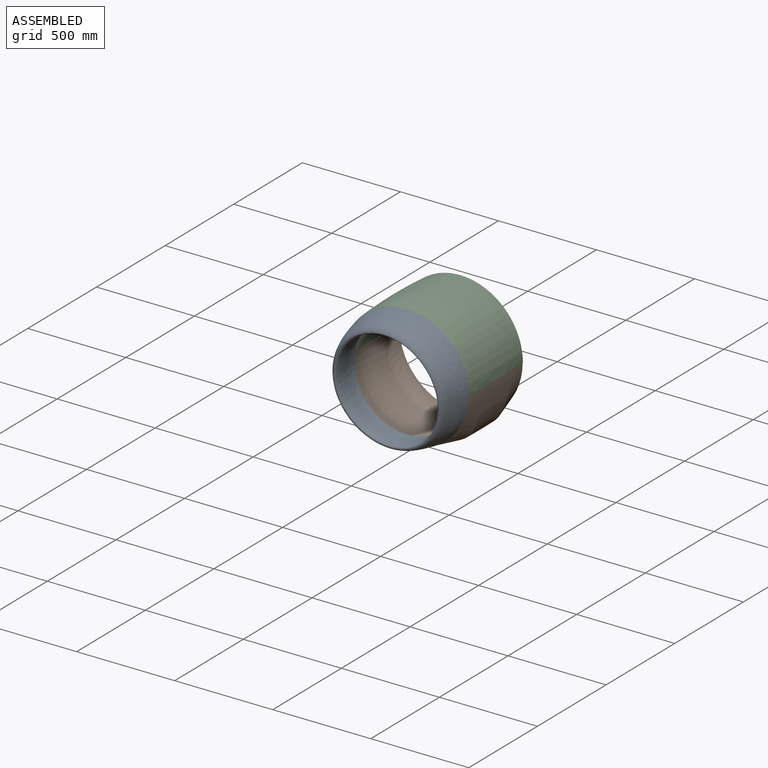
[diagram: assembled view]
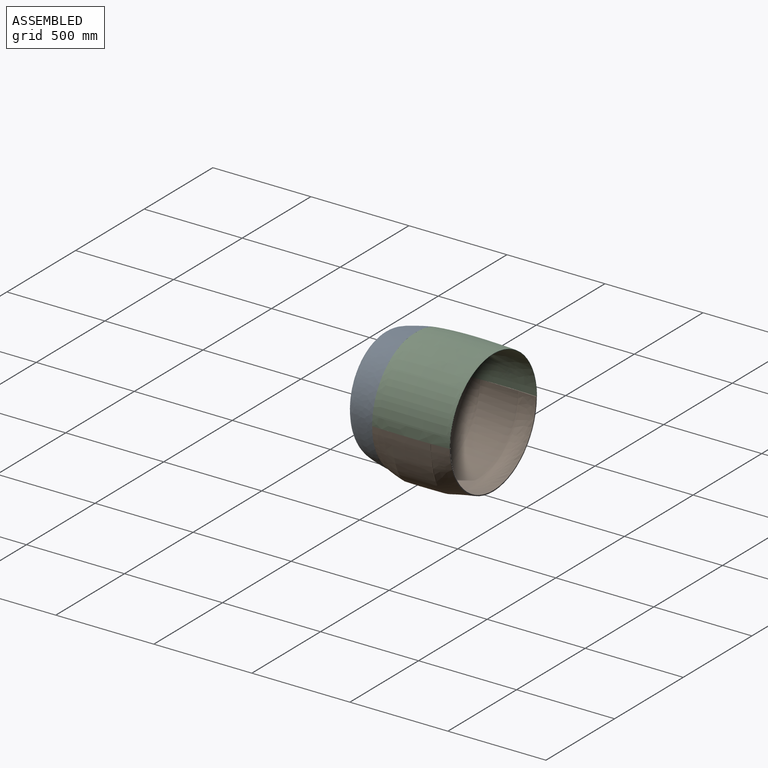
[diagram: assembled view, second angle]
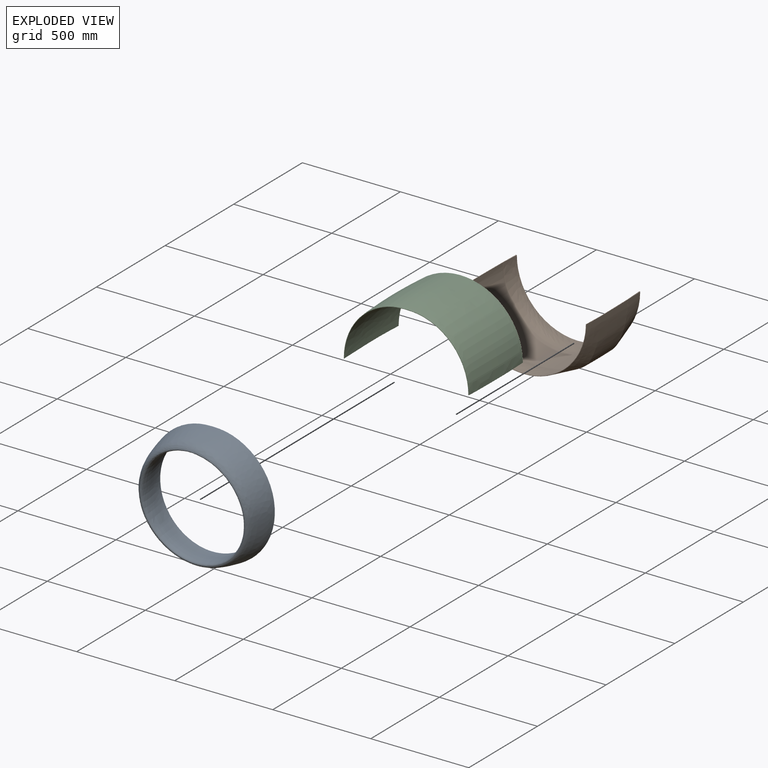
[diagram: exploded view]
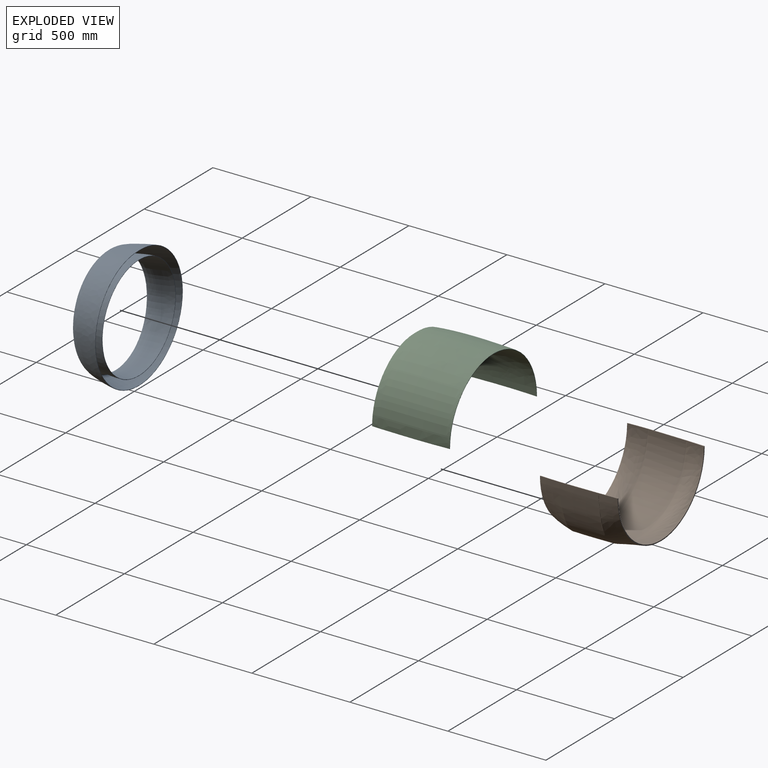
[diagram: exploded view, second angle]
ASSEMBLY  parts=3 mates=2
PART A: 4 faces, bbox 638.3x169.8x626 mm
  f0: bspline ~637.91x623.99mm, area 529496.8mm2, adj f1,f2
  f1: plane 536.49x536.02mm, normal (0,1,0), area 3610.4mm2, adj f0,f3
  f2: plane 637.54x625.02mm, normal (0,1,0), area 4223.5mm2, adj f0,f3
  f3: bspline ~638.34x626mm, area 540610.2mm2, adj f1,f2
PART B: 22 faces, bbox 647.8x396.6x341.9 mm
  f0: plane 639.01x315.53mm, normal (0,-1,0), area 2027.8mm2, adj f1,f19,f20,f21
  f1: plane 395x10.97mm, normal (0,0,1), area 1178.3mm2, adj f0,f2,f7,f13,f14,f15,f16,f17
  f2: bspline ~219.5x65.38mm, area 5119.8mm2, adj f1,f3,f7,f21
  f3: bspline ~61.76x59.13mm, area 779.2mm2, adj f2,f4,f7
  f4: bspline ~65.56x64.75mm, area 1977.9mm2, adj f3,f5,f7,f21
  f5: bspline ~51.82x40.65mm, area 522.4mm2, adj f4,f6,f21
  f6: bspline ~525.33x317.75mm, area 18016mm2, adj f5,f7,f20,f21
  f7: bspline ~640x317.02mm, area 170855.4mm2, adj f1,f2,f3,f4,f6,f8,f9,f12
  f8: bspline ~60.55x58.37mm, area 1038mm2, adj f7,f9,f13
  f9: bspline ~68.52x68.16mm, area 2476.3mm2, adj f7,f8,f10,f11,f14
  f10: bspline ~33.59x27.22mm, area 208mm2, adj f9,f13
  f11: bspline ~54.85x40.44mm, area 501.3mm2, adj f9,f12,f14
  f12: bspline ~519.15x316.91mm, area 17287.3mm2, adj f7,f11,f14,f20
  f13: bspline ~219.95x65.65mm, area 5999.1mm2, adj f1,f7,f8,f10,f14
  f14: bspline ~635x316.51mm, area 82226.2mm2, adj f1,f9,f11,f12,f13,f15,f20
  f15: plane 635.59x318.59mm, normal (0,1,0), area 4943.8mm2, adj f1,f14,f16,f20
  f16: bspline ~640x319.01mm, area 96788.9mm2, adj f1,f15,f17,f18,f20
  f17: bspline ~338.4x320mm, area 3125mm2, adj f1,f16,f18
  f18: bspline ~644.75x320.89mm, area 202806.5mm2, adj f1,f16,f17,f19,f20
  f19: bspline ~644x319.02mm, area 105192.2mm2, adj f0,f1,f18,f20
  f20: plane 395x11.21mm, normal (0,0,1), area 1151.1mm2, adj f0,f6,f7,f12,f14,f15,f16,f18
  f21: bspline ~640x317.02mm, area 90817.8mm2, adj f0,f1,f2,f4,f5,f6,f20
PART C: 6 faces, bbox 695x444.2x374.1 mm
  f0: plane 637.72x311.12mm, normal (0,-1,0), area 2233.4mm2, adj f2,f3,f4,f5
  f1: plane 636x318mm, normal (0,1,0), area 2484.5mm2, adj f2,f3,f4,f5
  f2: plane 443.45x55.99mm, normal (0,0,-1), area 974.7mm2, adj f0,f1,f3,f5
  f3: bspline ~644.28x395mm, area 396271.3mm2, adj f0,f1,f2,f4
  f4: plane 444.23x56.47mm, normal (0,0,-1), area 862mm2, adj f0,f1,f3,f5
  f5: bspline ~645.77x395mm, area 399281.9mm2, adj f0,f1,f2,f4
PLACE A t=(-516.83,-575.26,-0.76)mm
PLACE B t=(-516.59,-575.26,-0.76)mm
PLACE C t=(-516.59,-575.26,-0.76)mm
MATE fastened B.f0 <-> A.f2  axis (0,-1,0) through (-516.65,-575.26,-312.75)mm
MATE fastened C.f4 <-> B.f20  axis (0,0,-1) through (-835.33,-575.26,-0.76)mm
